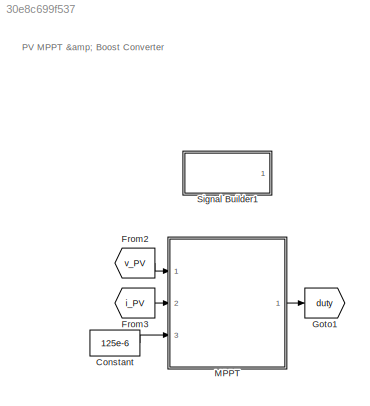
MODEL slx_30e8c699f537
KIND model
CONFIG AbsTol = auto
CONFIG FixedStep = 5e-6
CONFIG MaxStep = auto
CONFIG MinStep = auto
CONFIG RelTol = 1e-3
CONFIG SampleTimeConstraint = Unconstrained
CONFIG Solver = ode3
CONFIG SolverMode = SingleTasking
CONFIG SolverName = ode3
CONFIG StartTime = 0.0
CONFIG StopTime = 4
BLOCK [Constant] Constant
  Value = 125e-6
BLOCK [From] From2
  GotoTag = v_PV
BLOCK [From] From3
  GotoTag = i_PV
BLOCK [Goto] Goto1
  GotoTag = duty
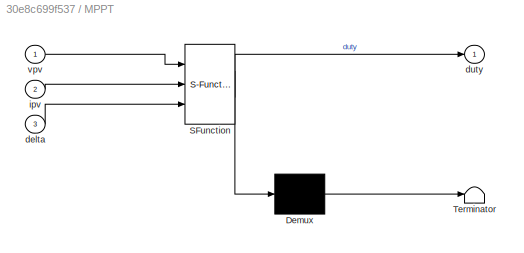
BLOCK [SubSystem] MPPT
  ErrorFcn = Stateflow.Translate.translate
  PermitHierarchicalResolution = ParametersOnly
  Ports = [3, 1]
  RequestExecContextInheritance = off
  SFBlockType = MATLAB Function
  TreatAsAtomicUnit = on
  Variant = off
BLOCK [Demux] MPPT/ Demux 
  Outputs = 1
  Ports = [1, 1]
BLOCK [S-Function] MPPT/ SFunction 
  EnableBusSupport = on
  FunctionName = sf_sfun
  PortCounts = [3 2]
  Ports = [3, 2]
  SFunctionDeploymentMode = off
  Tag = Stateflow S-Function irradiation_and_MPPT_prev_version 2
BLOCK [Terminator] MPPT/ Terminator 
BLOCK [Inport] MPPT/delta
  IconDisplay = Port number
  Port = 3
BLOCK [Outport] MPPT/duty
  IconDisplay = Port number
BLOCK [Inport] MPPT/ipv
  IconDisplay = Port number
  Port = 2
BLOCK [Inport] MPPT/vpv
  IconDisplay = Port number
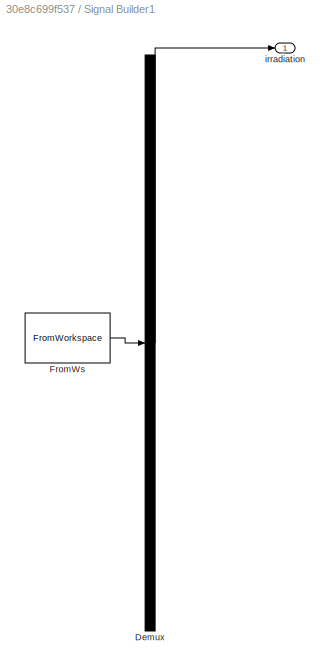
BLOCK [SubSystem] Signal Builder1
  ClipboardFcn = sigbuilder_block('clipboard');
  CloseFcn = sigbuilder_block('close');
  ContinueFcn = sigbuilder_block('continue');
  CopyFcn = sigbuilder_block('copy');
  DeleteFcn = sigbuilder_block('delete');
  LoadFcn = sigbuilder_block('load');
  MaskHideContents = on
  ModelCloseFcn = sigbuilder_block('modelClose');
  NameChangeFcn = sigbuilder_block('namechange');
  OpenFcn = sigbuilder_block('open',[193.2 120.6 550.8 400.2 ]);
  PauseFcn = sigbuilder_block('pause');
  Ports = [0, 1]
  PreSaveFcn = sigbuilder_block('preSave');
  RequestExecContextInheritance = off
  StartFcn = sigbuilder_block('start');
  StopFcn = sigbuilder_block('stop');
  Tag = STV Subsys
  Variant = off
BLOCK [Demux] Signal Builder1/Demux
  Outputs = 1
  Ports = [1, 1]
  Tag = STV Demux
BLOCK [FromWorkspace] Signal Builder1/FromWs
  SampleTime = 0
  Tag = STV FromWs
  VariableName = tuvar
  ZeroCross = on
BLOCK [Outport] Signal Builder1/irradiation
  IconDisplay = Port number
  Tag = STV Outport
ANNOTATION (root): PV MPPT & Boost Converter
LINE Constant:1 -> MPPT:3
LINE From2:1 -> MPPT:1
LINE From3:1 -> MPPT:2
LINE MPPT:1 -> Goto1:1
CHART MPPT states=1 transitions=1
  STATE_LABEL 'eML_blk_kernel()'
  STATE_LABEL 'SCRIPT:\nfunction duty = MPPT_algorithm(vpv,ipv,delta)\n% I used the MPPT algorithm in the MATLAB examples\n% I only modify somethings.\nduty_init = 0.1;\n% min and max value are used to limit duty between\n% 0 and 0.85\nduty_min=0;\nduty_max=0.85;\n\npersistent Vold Pold duty_old;\n% persistent variable type can be store the data\n% we need the old data by obtain difference\n% between old and new value\nif ise...<+884ch>'
